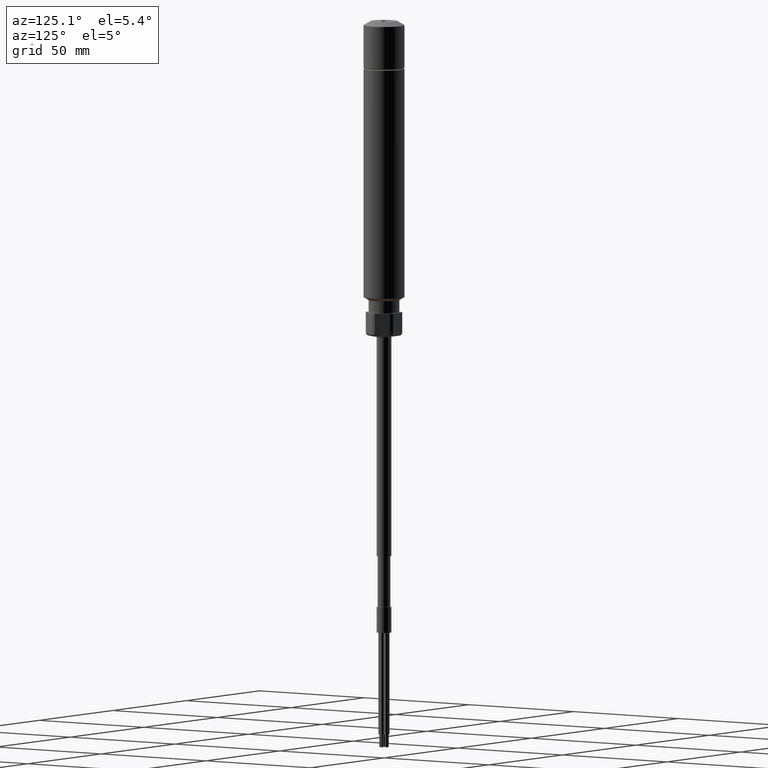
[diagram: clean part render]
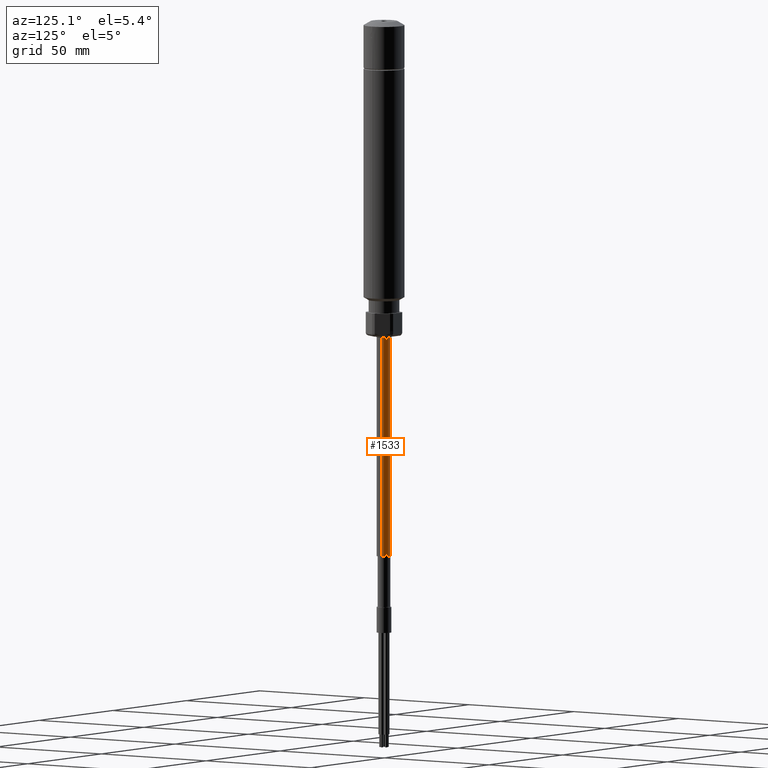
[diagram: same view with one face highlighted and labeled with its STEP entity id]
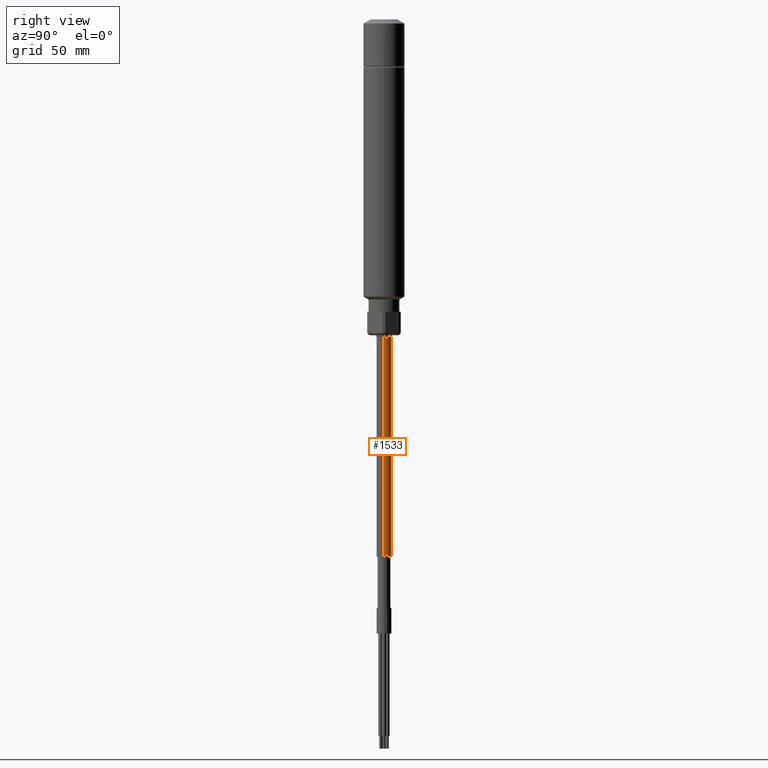
[diagram: same view with one face highlighted and labeled with its STEP entity id]
A machine part, auxiliary view. The second image highlights one B-rep face of the part: STEP entity #1533.
A second angle (right view) of the same face is appended — the face is thin or edge-on in the first view.
In plain terms, the highlighted cylindrical surface (edge-blend (fillet) strip) has radius 2.9 mm, axis along (0, -0, 1).
Its self-contained STEP definition (entity closure, byte-faithful):
#253 = CARTESIAN_POINT ( 'NONE',  ( 1.398218786443764530E-17, 0.1141732283464648307, -8.207309182112991763 ) ) ;
#268 = VERTEX_POINT ( 'NONE', #5124 ) ;
#315 = CARTESIAN_POINT ( 'NONE',  ( 1.398218786443764530E-17, 0.1141732283464648307, -8.601009969514587183 ) ) ;
#318 = DIRECTION ( 'NONE',  ( 0.000000000000000000, -1.000000000000000000, 0.000000000000000000 ) ) ;
#552 = DIRECTION ( 'NONE',  ( 0.000000000000000000, -1.909564484815120167E-19, 1.000000000000000000 ) ) ;
#1081 = LINE ( 'NONE', #4589, #5175 ) ;
#1114 = AXIS2_PLACEMENT_3D ( 'NONE', #2845, #4858, #318 ) ;
#1144 = CARTESIAN_POINT ( 'NONE',  ( 0.000000000000000000, -0.1141732283490099614, -8.207309182112991763 ) ) ;
#1533 = ADVANCED_FACE ( 'NONE', ( #6458 ), #4866, .T. ) ;
#1868 = CARTESIAN_POINT ( 'NONE',  ( 0.000000000000000000, -1.272558984167602335E-12, -8.601009969514587183 ) ) ;
#1915 = DIRECTION ( 'NONE',  ( 0.000000000000000000, -1.000000000000000000, 0.000000000000000000 ) ) ;
#2016 = EDGE_CURVE ( 'NONE', #5452, #4607, #1081, .T. ) ;
#2170 = EDGE_LOOP ( 'NONE', ( #4869, #5955, #3361, #2935 ) ) ;
#2261 = LINE ( 'NONE', #4754, #6311 ) ;
#2845 = CARTESIAN_POINT ( 'NONE',  ( 0.000000000000000000, -1.272559059347306963E-12, -8.207309182112991763 ) ) ;
#2935 = ORIENTED_EDGE ( 'NONE', *, *, #6493, .F. ) ;
#3164 = AXIS2_PLACEMENT_3D ( 'NONE', #3909, #5925, #1915 ) ;
#3277 = DIRECTION ( 'NONE',  ( 0.000000000000000000, -1.909564484815120167E-19, 1.000000000000000000 ) ) ;
#3361 = ORIENTED_EDGE ( 'NONE', *, *, #5904, .T. ) ;
#3909 = CARTESIAN_POINT ( 'NONE',  ( 0.000000000000000000, -1.272560979604980244E-12, 1.848688875811244081 ) ) ;
#3967 = CIRCLE ( 'NONE', #1114, 0.1141732283477373960 ) ;
#4369 = VERTEX_POINT ( 'NONE', #1144 ) ;
#4589 = CARTESIAN_POINT ( 'NONE',  ( 1.398218786443764530E-17, 0.1141732283464648307, 1.848688875811244081 ) ) ;
#4607 = VERTEX_POINT ( 'NONE', #253 ) ;
#4754 = CARTESIAN_POINT ( 'NONE',  ( 0.000000000000000000, -0.1141732283490099614, 1.848688875811244081 ) ) ;
#4858 = DIRECTION ( 'NONE',  ( 0.000000000000000000, -1.909564484815120167E-19, 1.000000000000000000 ) ) ;
#4866 = CYLINDRICAL_SURFACE ( 'NONE', #3164, 0.1141732283477373960 ) ;
#4869 = ORIENTED_EDGE ( 'NONE', *, *, #2016, .F. ) ;
#5124 = CARTESIAN_POINT ( 'NONE',  ( 0.000000000000000000, -0.1141732283490099614, -8.601009969514587183 ) ) ;
#5175 = VECTOR ( 'NONE', #552, 39.37007874015748143 ) ;
#5257 = CIRCLE ( 'NONE', #6412, 0.1141732283477373960 ) ;
#5426 = EDGE_CURVE ( 'NONE', #5452, #268, #5257, .T. ) ;
#5452 = VERTEX_POINT ( 'NONE', #315 ) ;
#5874 = DIRECTION ( 'NONE',  ( 0.000000000000000000, -1.000000000000000000, 0.000000000000000000 ) ) ;
#5904 = EDGE_CURVE ( 'NONE', #268, #4369, #2261, .T. ) ;
#5925 = DIRECTION ( 'NONE',  ( 0.000000000000000000, -1.909564484815120167E-19, 1.000000000000000000 ) ) ;
#5955 = ORIENTED_EDGE ( 'NONE', *, *, #5426, .T. ) ;
#6306 = DIRECTION ( 'NONE',  ( 0.000000000000000000, -1.909564484815120167E-19, 1.000000000000000000 ) ) ;
#6311 = VECTOR ( 'NONE', #6306, 39.37007874015748143 ) ;
#6412 = AXIS2_PLACEMENT_3D ( 'NONE', #1868, #3277, #5874 ) ;
#6458 = FACE_OUTER_BOUND ( 'NONE', #2170, .T. ) ;
#6493 = EDGE_CURVE ( 'NONE', #4607, #4369, #3967, .T. ) ;